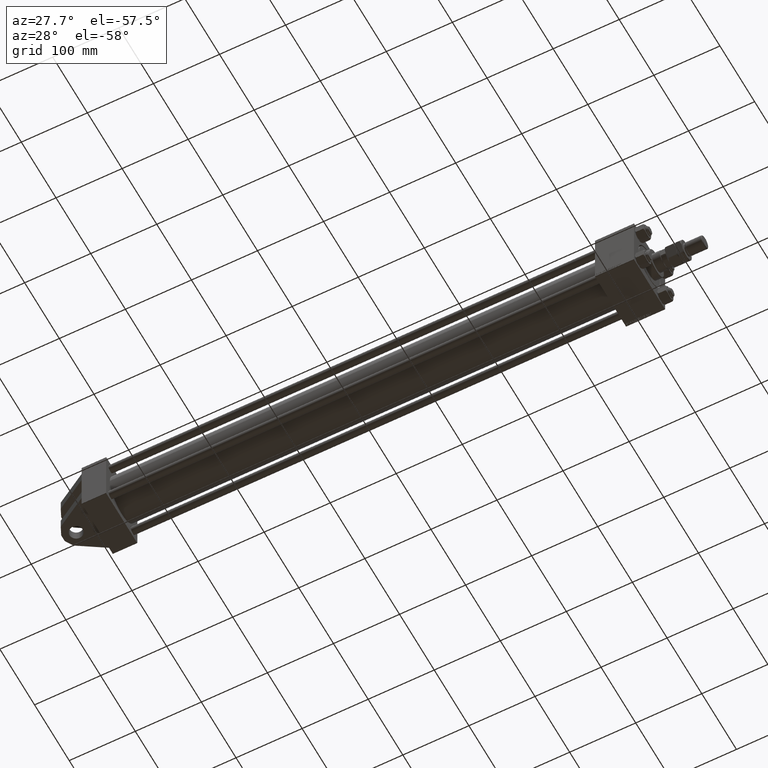
[diagram: clean part render]
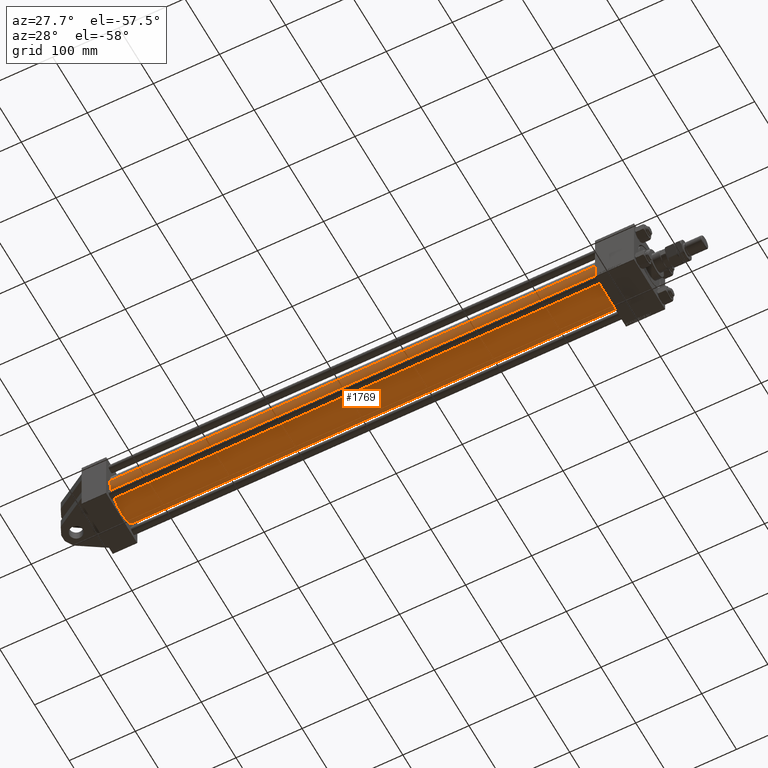
[diagram: same view with one face highlighted and labeled with its STEP entity id]
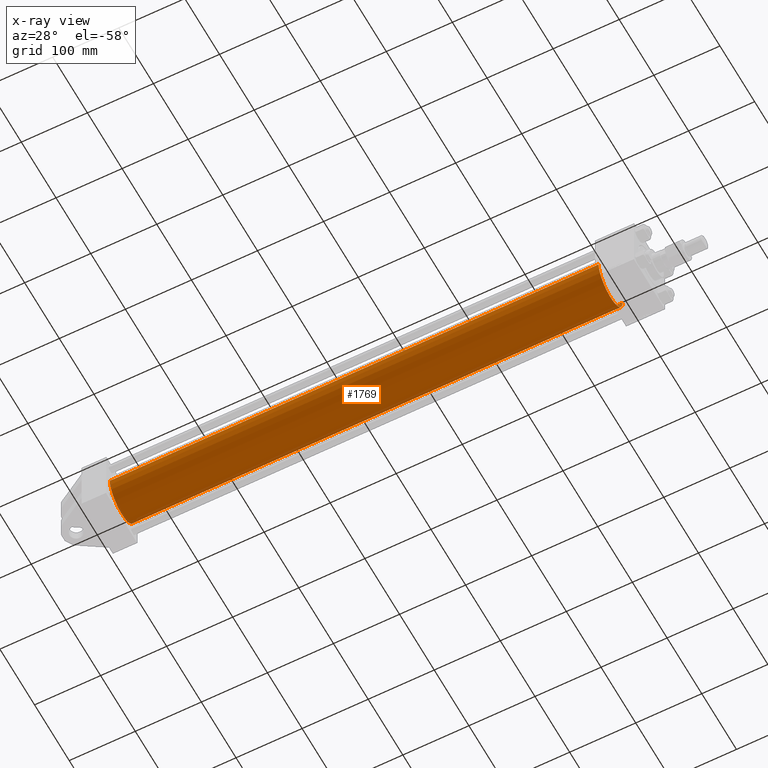
[diagram: x-ray of the same camera — body ghosted, the highlighted face saturated]
A machine part, auxiliary view. The second image highlights one B-rep face of the part: STEP entity #1769.
The next image is the same camera in x-ray: the body ghosted, the highlighted face saturated — about 0% of this face is hidden behind the body in this view.
In plain terms, the highlighted cylindrical surface (edge-blend (fillet) strip) has radius 34.5 mm, axis along (-1, -0, 0).
Its self-contained STEP definition (entity closure, byte-faithful):
#577 = VECTOR ( 'NONE', #50907, 1000.000000000000000 ) ;
#1577 = DIRECTION ( 'NONE',  ( 0.000000000000000000, 0.000000000000000000, 1.000000000000000000 ) ) ;
#1769 = ADVANCED_FACE ( 'NONE', ( #32739 ), #13006, .T. ) ;
#6889 = VERTEX_POINT ( 'NONE', #31429 ) ;
#7289 = CARTESIAN_POINT ( 'NONE',  ( 777.0000000000000000, 7.555845051047534515E-16, -34.49999999999999289 ) ) ;
#8939 = LINE ( 'NONE', #7289, #577 ) ;
#10589 = DIRECTION ( 'NONE',  ( 1.000000000000000000, 0.000000000000000000, 0.000000000000000000 ) ) ;
#11070 = DIRECTION ( 'NONE',  ( -1.000000000000000000, -0.000000000000000000, -0.000000000000000000 ) ) ;
#11903 = AXIS2_PLACEMENT_3D ( 'NONE', #28941, #45047, #12592 ) ;
#12592 = DIRECTION ( 'NONE',  ( 0.000000000000000000, 0.000000000000000000, 1.000000000000000000 ) ) ;
#13006 = CYLINDRICAL_SURFACE ( 'NONE', #17905, 34.49999999999999289 ) ;
#13435 = CARTESIAN_POINT ( 'NONE',  ( 777.0000000000000000, 7.555845051047534515E-16, -34.49999999999999289 ) ) ;
#13477 = EDGE_LOOP ( 'NONE', ( #40544, #13590, #22083, #48311 ) ) ;
#13590 = ORIENTED_EDGE ( 'NONE', *, *, #48487, .T. ) ;
#15962 = VERTEX_POINT ( 'NONE', #17896 ) ;
#17896 = CARTESIAN_POINT ( 'NONE',  ( 37.00000000000003553, -3.469446951953614189E-15, 34.49999999999999289 ) ) ;
#17905 = AXIS2_PLACEMENT_3D ( 'NONE', #24939, #40786, #1577 ) ;
#22083 = ORIENTED_EDGE ( 'NONE', *, *, #25525, .T. ) ;
#24939 = CARTESIAN_POINT ( 'NONE',  ( 777.0000000000000000, -3.469446951953614189E-15, 0.000000000000000000 ) ) ;
#25147 = VERTEX_POINT ( 'NONE', #13435 ) ;
#25525 = EDGE_CURVE ( 'NONE', #37001, #15962, #49229, .T. ) ;
#26154 = CARTESIAN_POINT ( 'NONE',  ( 777.0000000000000000, -3.469446951953614189E-15, 0.000000000000000000 ) ) ;
#28276 = EDGE_CURVE ( 'NONE', #6889, #15962, #49774, .T. ) ;
#28941 = CARTESIAN_POINT ( 'NONE',  ( 37.00000000000003553, -3.469446951953614189E-15, 0.000000000000000000 ) ) ;
#29991 = CIRCLE ( 'NONE', #41630, 34.49999999999999289 ) ;
#31429 = CARTESIAN_POINT ( 'NONE',  ( 777.0000000000000000, -3.469446951953614189E-15, 34.49999999999999289 ) ) ;
#31723 = EDGE_CURVE ( 'NONE', #25147, #6889, #29991, .T. ) ;
#32739 = FACE_OUTER_BOUND ( 'NONE', #13477, .T. ) ;
#34426 = CARTESIAN_POINT ( 'NONE',  ( 37.00000000000003553, 7.555845051047534515E-16, -34.49999999999999289 ) ) ;
#37001 = VERTEX_POINT ( 'NONE', #34426 ) ;
#38840 = CARTESIAN_POINT ( 'NONE',  ( 777.0000000000000000, -3.469446951953614189E-15, 34.49999999999999289 ) ) ;
#40544 = ORIENTED_EDGE ( 'NONE', *, *, #31723, .F. ) ;
#40655 = VECTOR ( 'NONE', #11070, 1000.000000000000000 ) ;
#40786 = DIRECTION ( 'NONE',  ( -1.000000000000000000, -0.000000000000000000, -0.000000000000000000 ) ) ;
#41630 = AXIS2_PLACEMENT_3D ( 'NONE', #26154, #10589, #46662 ) ;
#45047 = DIRECTION ( 'NONE',  ( 1.000000000000000000, -0.000000000000000000, 0.000000000000000000 ) ) ;
#46662 = DIRECTION ( 'NONE',  ( 0.000000000000000000, 0.000000000000000000, -1.000000000000000000 ) ) ;
#48311 = ORIENTED_EDGE ( 'NONE', *, *, #28276, .F. ) ;
#48487 = EDGE_CURVE ( 'NONE', #25147, #37001, #8939, .T. ) ;
#49229 = CIRCLE ( 'NONE', #11903, 34.49999999999999289 ) ;
#49774 = LINE ( 'NONE', #38840, #40655 ) ;
#50907 = DIRECTION ( 'NONE',  ( -1.000000000000000000, -0.000000000000000000, -0.000000000000000000 ) ) ;